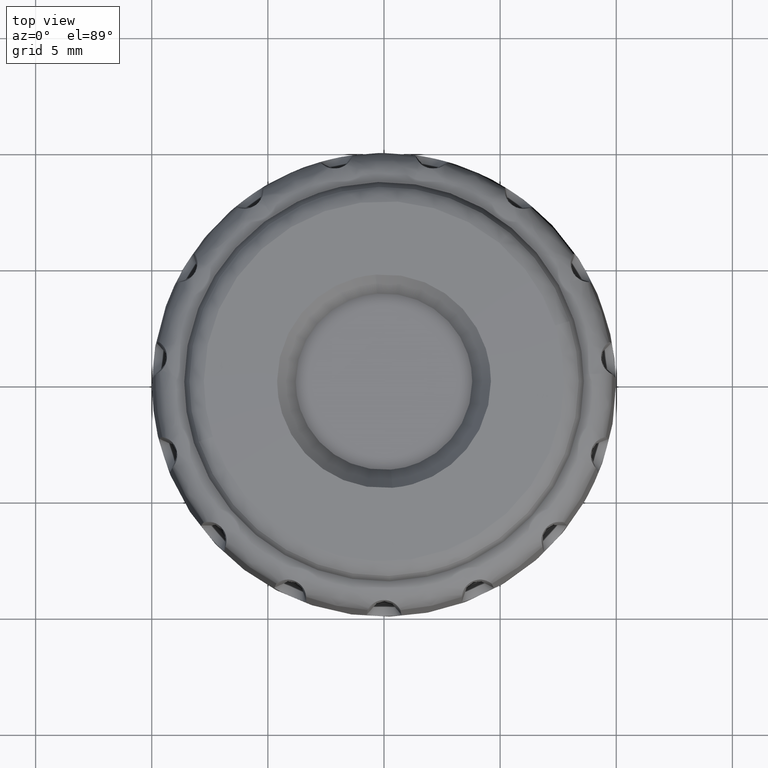
[diagram: clean part render]
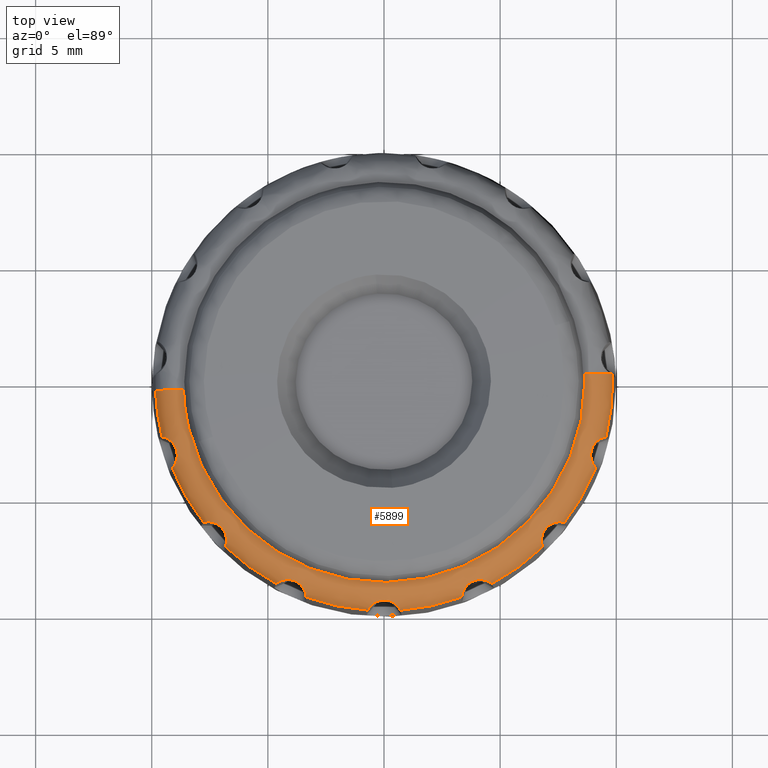
[diagram: same view with one face highlighted and labeled with its STEP entity id]
A machine part, top view. The second image highlights one B-rep face of the part: STEP entity #5899.
In plain terms, the highlighted face is a freeform B-spline surface patch.
Its self-contained STEP definition (entity closure, byte-faithful):
#3811=CARTESIAN_POINT('',(4.637635976504630,-8.684960734353240,11.624295663130360));
#3812=VERTEX_POINT('',#3811);
#3813=CARTESIAN_POINT('',(3.350999456178780,-9.257808220767871,11.624295663130360));
#3814=VERTEX_POINT('',#3813);
#3815=CARTESIAN_POINT('',(4.637635976504630,-8.684960734353240,11.624295663130360));
#3816=CARTESIAN_POINT('',(4.636608645985207,-8.684167511551108,11.682749642530091));
#3817=CARTESIAN_POINT('',(4.631943738530559,-8.680521373731459,11.740204651719431));
#3818=CARTESIAN_POINT('',(4.615203353572202,-8.668174489181718,11.853172620679290));
#3819=CARTESIAN_POINT('',(4.603133110333402,-8.659465721878689,11.908685527784300));
#3820=CARTESIAN_POINT('',(4.578344029615364,-8.643252776485923,11.990376478088040));
#3821=CARTESIAN_POINT('',(4.568896856117394,-8.637291142342791,12.017481844091909));
#3822=CARTESIAN_POINT('',(4.547712017052596,-8.624664469937118,12.070368389816590));
#3823=CARTESIAN_POINT('',(4.536012809522674,-8.618020120462811,12.096092910828650));
#3824=CARTESIAN_POINT('',(4.497309706914053,-8.597524428083945,12.171068356548110));
#3825=CARTESIAN_POINT('',(4.466691996859994,-8.583045603804386,12.218207881241391));
#3826=CARTESIAN_POINT('',(4.393660993014212,-8.555596775305917,12.305781290728000));
#3827=CARTESIAN_POINT('',(4.352513500512317,-8.543134277503382,12.344681769097450));
#3828=CARTESIAN_POINT('',(4.283224876110743,-8.529211357607897,12.395845708990811));
#3829=CARTESIAN_POINT('',(4.258651526324937,-8.525358352364046,12.411803205833010));
#3830=CARTESIAN_POINT('',(4.208226120016832,-8.519988092043008,12.440502143775721));
#3831=CARTESIAN_POINT('',(4.182324087898325,-8.518440156806712,12.453319384359419));
#3832=CARTESIAN_POINT('',(4.129239264947255,-8.517971463506022,12.476120747023341));
#3833=CARTESIAN_POINT('',(4.102056937989644,-8.519048630255291,12.486105865226810));
#3834=CARTESIAN_POINT('',(4.046453923172666,-8.524246670058700,12.503350211179891));
#3835=CARTESIAN_POINT('',(4.018151977742120,-8.528387883604857,12.510544464144759));
#3836=CARTESIAN_POINT('',(3.962332865307659,-8.539668945335635,12.521898031999360));
#3837=CARTESIAN_POINT('',(3.934579587820862,-8.546824589757769,12.526135580710280));
#3838=CARTESIAN_POINT('',(3.879441002225657,-8.564300653768697,12.531865202224321));
#3839=CARTESIAN_POINT('',(3.851831298322425,-8.574729697913464,12.533350443017429));
#3840=CARTESIAN_POINT('',(3.771725631705960,-8.610159010772255,12.533539481046260));
#3841=CARTESIAN_POINT('',(3.721706240920565,-8.639211890461361,12.528226050742269));
#3842=CARTESIAN_POINT('',(3.628683143850402,-8.707524915824548,12.505768157004271));
#3843=CARTESIAN_POINT('',(3.587831846751762,-8.745197260629844,12.489111583425769));
#3844=CARTESIAN_POINT('',(3.534058414977495,-8.805420232291429,12.454915753428651));
#3845=CARTESIAN_POINT('',(3.517459891965453,-8.826081186812480,12.441951644651990));
#3846=CARTESIAN_POINT('',(3.487550244879299,-8.867064979116968,12.413510569113861));
#3847=CARTESIAN_POINT('',(3.474094989029099,-8.887544204531954,12.397949103856330));
#3848=CARTESIAN_POINT('',(3.449827905439963,-8.928160046985195,12.364041340103180));
#3849=CARTESIAN_POINT('',(3.438962899778926,-8.948420044865788,12.345562336215959));
#3850=CARTESIAN_POINT('',(3.419947380297705,-8.987472172998109,12.306498559585600));
#3851=CARTESIAN_POINT('',(3.411757455661317,-9.006301317094515,12.285907748937170));
#3852=CARTESIAN_POINT('',(3.390370963646895,-9.060461988126631,12.221028789506439));
#3853=CARTESIAN_POINT('',(3.380297723867414,-9.093690702608425,12.173132669876651));
#3854=CARTESIAN_POINT('',(3.365897630435911,-9.150678346332308,12.073093106438440));
#3855=CARTESIAN_POINT('',(3.361421624853390,-9.174776860285284,12.020708147777690));
#3856=CARTESIAN_POINT('',(3.356787578316711,-9.204398222882352,11.938823318942539));
#3857=CARTESIAN_POINT('',(3.355597748397640,-9.213208461083227,11.910853656891231));
#3858=CARTESIAN_POINT('',(3.353733682006302,-9.228410706895138,11.854547716689600));
#3859=CARTESIAN_POINT('',(3.353055469710963,-9.234819928552154,11.826202720673830));
#3860=CARTESIAN_POINT('',(3.351508862856201,-9.250586763201818,11.740614259448799));
#3861=CARTESIAN_POINT('',(3.351097516915560,-9.256512385363941,11.682822376164950));
#3862=CARTESIAN_POINT('',(3.350999456178780,-9.257808220767871,11.624295663130360));
#3863=B_SPLINE_CURVE_WITH_KNOTS('',3,(#3815,#3816,#3817,#3818,#3819,#3820,#3821,#3822,#3823,#3824,#3825,#3826,#3827,#3828,#3829,#3830,#3831,#3832,#3833,#3834,#3835,#3836,#3837,#3838,#3839,#3840,#3841,#3842,#3843,#3844,#3845,#3846,#3847,#3848,#3849,#3850,#3851,#3852,#3853,#3854,#3855,#3856,#3857,#3858,#3859,#3860,#3861,#3862),.UNSPECIFIED.,.F.,.U.,(4,2,2,2,2,2,2,2,2,2,2,2,2,2,2,2,2,2,2,2,2,2,2,4),(0.0,0.062499999999999,0.124999999999998,0.156249999999998,0.187499999999998,0.249999999999999,0.312500000000000,0.343750000000000,0.375000000000001,0.406250000000001,0.437500000000001,0.468750000000001,0.500000000000001,0.562500000000000,0.625000000000000,0.656249999999999,0.687499999999999,0.718749999999998,0.749999999999998,0.812499999999999,0.874999999999999,0.906249999999999,0.937499999999999,1.0),.UNSPECIFIED.);
#3864=EDGE_CURVE('',#3812,#3814,#3863,.T.);
#3902=CARTESIAN_POINT('',(7.769183054871680,-6.047809939781700,11.624295663130360));
#3903=VERTEX_POINT('',#3902);
#3904=CARTESIAN_POINT('',(6.826780169709621,-7.094454378053831,11.624295663130360));
#3905=VERTEX_POINT('',#3904);
#3906=CARTESIAN_POINT('',(7.769183054871680,-6.047809939781700,11.624295663130360));
#3907=CARTESIAN_POINT('',(7.767921908962411,-6.047503147660713,11.682749642530080));
#3908=CARTESIAN_POINT('',(7.762177286089938,-6.046069623815995,11.740204651719431));
#3909=CARTESIAN_POINT('',(7.741862253077835,-6.041599111501300,11.853172620679279));
#3910=CARTESIAN_POINT('',(7.727293362416227,-6.038552666906014,11.908685527784300));
#3911=CARTESIAN_POINT('',(7.698053011343698,-6.033824031763629,11.990376478088040));
#3912=CARTESIAN_POINT('',(7.686997773848447,-6.032220319607167,12.017481844091909));
#3913=CARTESIAN_POINT('',(7.662508730002406,-6.029301930711137,12.070368389816590));
#3914=CARTESIAN_POINT('',(7.649118471704830,-6.027990511827262,12.096092910828640));
#3915=CARTESIAN_POINT('',(7.605425079004355,-6.025008735184957,12.171068356548099));
#3916=CARTESIAN_POINT('',(7.571565340677901,-6.024235015638422,12.218207881241391));
#3917=CARTESIAN_POINT('',(7.493683754487680,-6.028863648390725,12.305781290728000));
#3918=CARTESIAN_POINT('',(7.451024695098646,-6.034214783103543,12.344681769097450));
#3919=CARTESIAN_POINT('',(7.382063425310182,-6.049677785368337,12.395845708990811));
#3920=CARTESIAN_POINT('',(7.358047394815659,-6.056152771730551,12.411803205833010));
#3921=CARTESIAN_POINT('',(7.309797212277686,-6.071756655295399,12.440502143775721));
#3922=CARTESIAN_POINT('',(7.285504926510401,-6.080877851684281,12.453319384359419));
#3923=CARTESIAN_POINT('',(7.236818892893933,-6.102041221733797,12.476120747023330));
#3924=CARTESIAN_POINT('',(7.212424724761281,-6.114081310942442,12.486105865226801));
#3925=CARTESIAN_POINT('',(7.163743076404214,-6.141445740185047,12.503350211179900));
#3926=CARTESIAN_POINT('',(7.139572346009713,-6.156740365286200,12.510544464144759));
#3927=CARTESIAN_POINT('',(7.093167470574280,-6.189749806398800,12.521898031999370));
#3928=CARTESIAN_POINT('',(7.070724052782821,-6.207575087776474,12.526135580710280));
#3929=CARTESIAN_POINT('',(7.027460603981470,-6.245967149880071,12.531865202224321));
#3930=CARTESIAN_POINT('',(7.006479758799745,-6.266724434067996,12.533350443017429));
#3931=CARTESIAN_POINT('',(6.947709990709509,-6.331672631828472,12.533539481046249));
#3932=CARTESIAN_POINT('',(6.913831874219892,-6.378558477196641,12.528226050742269));
#3933=CARTESIAN_POINT('',(6.856636457050174,-6.478801433445836,12.505768157004280));
#3934=CARTESIAN_POINT('',(6.834639663209803,-6.529832552368653,12.489111583425769));
#3935=CARTESIAN_POINT('',(6.810010078200251,-6.606720599702365,12.454915753428660));
#3936=CARTESIAN_POINT('',(6.803250140183657,-6.632346548385562,12.441951644651990));
#3937=CARTESIAN_POINT('',(6.792595928050850,-6.681952455133699,12.413510569113861));
#3938=CARTESIAN_POINT('',(6.788633591585565,-6.706133904083834,12.397949103856330));
#3939=CARTESIAN_POINT('',(6.782984459017602,-6.753108634581603,12.364041340103190));
#3940=CARTESIAN_POINT('',(6.781299265975378,-6.776036259546837,12.345562336215959));
#3941=CARTESIAN_POINT('',(6.779811656030097,-6.819446462373532,12.306498559585600));
#3942=CARTESIAN_POINT('',(6.779988290441854,-6.839978883887750,12.285907748937170));
#3943=CARTESIAN_POINT('',(6.782479887329507,-6.898155788861133,12.221028789506450));
#3944=CARTESIAN_POINT('',(6.786792860667269,-6.932608885772085,12.173132669876660));
#3945=CARTESIAN_POINT('',(6.796816683628340,-6.990526734500094,12.073093106438440));
#3946=CARTESIAN_POINT('',(6.802529397728391,-7.014362377942796,12.020708147777700));
#3947=CARTESIAN_POINT('',(6.810344079150368,-7.043307675724718,11.938823318942550));
#3948=CARTESIAN_POINT('',(6.812840562142957,-7.051840176240994,11.910853656891240));
#3949=CARTESIAN_POINT('',(6.817320963187154,-7.066486302954914,11.854547716689600));
#3950=CARTESIAN_POINT('',(6.819308250726932,-7.072617272079004,11.826202720673839));
#3951=CARTESIAN_POINT('',(6.824308304457344,-7.087650053934871,11.740614259448810));
#3952=CARTESIAN_POINT('',(6.826342688908112,-7.093230688611829,11.682822376164950));
#3953=CARTESIAN_POINT('',(6.826780169709621,-7.094454378053831,11.624295663130360));
#3954=B_SPLINE_CURVE_WITH_KNOTS('',3,(#3906,#3907,#3908,#3909,#3910,#3911,#3912,#3913,#3914,#3915,#3916,#3917,#3918,#3919,#3920,#3921,#3922,#3923,#3924,#3925,#3926,#3927,#3928,#3929,#3930,#3931,#3932,#3933,#3934,#3935,#3936,#3937,#3938,#3939,#3940,#3941,#3942,#3943,#3944,#3945,#3946,#3947,#3948,#3949,#3950,#3951,#3952,#3953),.UNSPECIFIED.,.F.,.U.,(4,2,2,2,2,2,2,2,2,2,2,2,2,2,2,2,2,2,2,2,2,2,2,4),(0.0,0.062500000000000,0.125000000000001,0.156250000000002,0.187500000000003,0.250000000000004,0.312500000000004,0.343750000000005,0.375000000000005,0.406250000000005,0.437500000000006,0.468750000000006,0.500000000000007,0.562500000000006,0.625000000000005,0.656250000000005,0.687500000000004,0.718750000000003,0.750000000000002,0.812500000000003,0.875000000000003,0.906250000000002,0.937500000000002,1.0),.UNSPECIFIED.);
#3955=EDGE_CURVE('',#3903,#3905,#3954,.T.);
#3993=CARTESIAN_POINT('',(9.557367802239160,-2.364937863993445,11.624295663130360));
#3994=VERTEX_POINT('',#3993);
#3995=CARTESIAN_POINT('',(9.122148572546839,-3.704404922279605,11.624295663130360));
#3996=VERTEX_POINT('',#3995);
#3997=CARTESIAN_POINT('',(9.557367802239160,-2.364937863993445,11.624295663130360));
#3998=CARTESIAN_POINT('',(9.556090904524915,-2.365170549698443,11.682749642530091));
#3999=CARTESIAN_POINT('',(9.550259863717525,-2.366197509124563,11.740204651719431));
#4000=CARTESIAN_POINT('',(9.529882836415748,-2.370376361237454,11.853172620679279));
#4001=CARTESIAN_POINT('',(9.515334391880945,-2.373518997296511,11.908685527784300));
#4002=CARTESIAN_POINT('',(9.486698692794620,-2.381092296378937,11.990376478088050));
#4003=CARTESIAN_POINT('',(9.475946942298691,-2.384123802610259,12.017481844091920));
#4004=CARTESIAN_POINT('',(9.452388071828370,-2.391418313176731,12.070368389816601));
#4005=CARTESIAN_POINT('',(9.439622060069462,-2.395666581122173,12.096092910828650));
#4006=CARTESIAN_POINT('',(9.398493361817051,-2.410714296486474,12.171068356548110));
#4007=CARTESIAN_POINT('',(9.367246251580909,-2.423779464811574,12.218207881241391));
#4008=CARTESIAN_POINT('',(9.297980516830540,-2.459685226161966,12.305781290728010));
#4009=CARTESIAN_POINT('',(9.261186029468123,-2.481924733584764,12.344681769097450));
#4010=CARTESIAN_POINT('',(9.204476144332656,-2.524099964441287,12.395845708990811));
#4011=CARTESIAN_POINT('',(9.185170022980701,-2.539783358444133,12.411803205833021));
#4012=CARTESIAN_POINT('',(9.147437959112827,-2.573663332669676,12.440502143775729));
#4013=CARTESIAN_POINT('',(9.128955776594417,-2.591876522964627,12.453319384359419));
#4014=CARTESIAN_POINT('',(9.093086789823568,-2.631012617419610,12.476120747023330));
#4015=CARTESIAN_POINT('',(9.075698753800074,-2.651933788282681,12.486105865226810));
#4016=CARTESIAN_POINT('',(9.042355971162740,-2.696733048550394,12.503350211179900));
#4017=CARTESIAN_POINT('',(9.026495794673684,-2.720536505579253,12.510544464144759));
#4018=CARTESIAN_POINT('',(8.997528980775121,-2.769566693823948,12.521898031999360));
#4019=CARTESIAN_POINT('',(8.984276093507200,-2.794979459069368,12.526135580710280));
#4020=CARTESIAN_POINT('',(8.960368424833545,-2.847649182946986,12.531865202224321));
#4021=CARTESIAN_POINT('',(8.949644217110244,-2.875145584167968,12.533350443017429));
#4022=CARTESIAN_POINT('',(8.922372174355619,-2.958382533401493,12.533539481046260));
#4023=CARTESIAN_POINT('',(8.910493166275865,-3.014994355840034,12.528226050742269));
#4024=CARTESIAN_POINT('',(8.899015036239289,-3.129834325161083,12.505768157004271));
#4025=CARTESIAN_POINT('',(8.899676191146785,-3.185400474136504,12.489111583425769));
#4026=CARTESIAN_POINT('',(8.908449131902854,-3.265658955252361,12.454915753428660));
#4027=CARTESIAN_POINT('',(8.912696633576887,-3.291818938765947,12.441951644651990));
#4028=CARTESIAN_POINT('',(8.923140066465670,-3.341469648025465,12.413510569113861));
#4029=CARTESIAN_POINT('',(8.929355773356841,-3.365172128305704,12.397949103856320));
#4030=CARTESIAN_POINT('',(8.943301378151810,-3.410383389192908,12.364041340103180));
#4031=CARTESIAN_POINT('',(8.951087382914896,-3.432014246595362,12.345562336215950));
#4032=CARTESIAN_POINT('',(8.967384903779610,-3.472276505678381,12.306498559585600));
#4033=CARTESIAN_POINT('',(8.975897555545046,-3.490961962399410,12.285907748937170));
#4034=CARTESIAN_POINT('',(9.001836421597449,-3.543095785923565,12.221028789506439));
#4035=CARTESIAN_POINT('',(9.019789855780221,-3.572816011811208,12.173132669876651));
#4036=CARTESIAN_POINT('',(9.052504385080326,-3.621649543331139,12.073093106438430));
#4037=CARTESIAN_POINT('',(9.067418038696674,-3.641100916972301,12.020708147777690));
#4038=CARTESIAN_POINT('',(9.086330218665292,-3.664365244992806,11.938823318942550));
#4039=CARTESIAN_POINT('',(9.092081349980285,-3.671144660969881,11.910853656891231));
#4040=CARTESIAN_POINT('',(9.102131516416311,-3.682702220221089,11.854547716689590));
#4041=CARTESIAN_POINT('',(9.106440683721639,-3.687494836552594,11.826202720673830));
#4042=CARTESIAN_POINT('',(9.117122843323173,-3.699194261063250,11.740614259448810));
#4043=CARTESIAN_POINT('',(9.121251194611999,-3.703464965820912,11.682822376164950));
#4044=CARTESIAN_POINT('',(9.122148572546839,-3.704404922279605,11.624295663130360));
#4045=B_SPLINE_CURVE_WITH_KNOTS('',3,(#3997,#3998,#3999,#4000,#4001,#4002,#4003,#4004,#4005,#4006,#4007,#4008,#4009,#4010,#4011,#4012,#4013,#4014,#4015,#4016,#4017,#4018,#4019,#4020,#4021,#4022,#4023,#4024,#4025,#4026,#4027,#4028,#4029,#4030,#4031,#4032,#4033,#4034,#4035,#4036,#4037,#4038,#4039,#4040,#4041,#4042,#4043,#4044),.UNSPECIFIED.,.F.,.U.,(4,2,2,2,2,2,2,2,2,2,2,2,2,2,2,2,2,2,2,2,2,2,2,4),(0.0,0.062499999999999,0.124999999999998,0.156249999999998,0.187499999999999,0.249999999999998,0.312499999999997,0.343749999999997,0.374999999999996,0.406249999999996,0.437499999999995,0.468749999999994,0.499999999999994,0.562499999999993,0.624999999999992,0.656249999999992,0.687499999999992,0.718749999999992,0.749999999999992,0.812499999999994,0.874999999999996,0.906249999999997,0.937499999999998,1.0),.UNSPECIFIED.);
#4046=EDGE_CURVE('',#3994,#3996,#4045,.T.);
#4086=CARTESIAN_POINT('',(9.753774350745410,0.367882929390230,12.043987260939490));
#4087=VERTEX_POINT('',#4086);
#4133=CARTESIAN_POINT('',(9.840214615072579,0.326169798018977,11.624295663130360));
#4134=VERTEX_POINT('',#4133);
#4135=CARTESIAN_POINT('',(9.753774350745410,0.367882929390230,12.043987260939490));
#4136=CARTESIAN_POINT('',(9.764125403357488,0.362097205905339,12.018561900542251));
#4137=CARTESIAN_POINT('',(9.773645901445381,0.357084966167851,11.992599385654950));
#4138=CARTESIAN_POINT('',(9.791206734610061,0.348179203254263,11.938823087230270));
#4139=CARTESIAN_POINT('',(9.799218144830409,0.344325096544657,11.910853446451361));
#4140=CARTESIAN_POINT('',(9.813100418096665,0.337854515967455,11.854547548654640));
#4141=CARTESIAN_POINT('',(9.818986424098968,0.335228941435563,11.826202573780440));
#4142=CARTESIAN_POINT('',(9.833503806012603,0.328885817347881,11.740614175805840));
#4143=CARTESIAN_POINT('',(9.839012400037719,0.326663490333252,11.682822334458301));
#4144=CARTESIAN_POINT('',(9.840214615072579,0.326169798018977,11.624295663130360));
#4145=B_SPLINE_CURVE_WITH_KNOTS('',3,(#4135,#4136,#4137,#4138,#4139,#4140,#4141,#4142,#4143,#4144),.UNSPECIFIED.,.F.,.U.,(4,2,2,2,4),(0.844681429572497,0.874999999999997,0.906249999999998,0.937499999999999,1.0),.UNSPECIFIED.);
#4146=EDGE_CURVE('',#4087,#4134,#4145,.T.);
#4821=CARTESIAN_POINT('',(-9.122148572546831,-3.704404922279615,11.624295663130360));
#4822=VERTEX_POINT('',#4821);
#4823=CARTESIAN_POINT('',(-9.557367802239160,-2.364937863993455,11.624295663130360));
#4824=VERTEX_POINT('',#4823);
#4825=CARTESIAN_POINT('',(-9.122148572546831,-3.704404922279615,11.624295663130360));
#4826=CARTESIAN_POINT('',(-9.121252309821745,-3.703466133944803,11.682749642530091));
#4827=CARTESIAN_POINT('',(-9.117138530319052,-3.699207906524439,11.740204651719431));
#4828=CARTESIAN_POINT('',(-9.103109436580537,-3.683849828014586,11.853172620679279));
#4829=CARTESIAN_POINT('',(-9.093186692838998,-3.672756020894320,11.908685527784300));
#4830=CARTESIAN_POINT('',(-9.074471399144203,-3.649797451621129,11.990376478088040));
#4831=CARTESIAN_POINT('',(-9.067554924928722,-3.641025191183599,12.017481844091909));
#4832=CARTESIAN_POINT('',(-9.052783004083615,-3.621276251546552,12.070368389816590));
#4833=CARTESIAN_POINT('',(-9.044952152866387,-3.610335657139554,12.096092910828650));
#4834=CARTESIAN_POINT('',(-9.020523162195506,-3.573986957404564,12.171068356548110));
#4835=CARTESIAN_POINT('',(-9.002923232249570,-3.545050423621627,12.218207881241391));
#4836=CARTESIAN_POINT('',(-8.967990952702742,-3.475288675117717,12.305781290727991));
#4837=CARTESIAN_POINT('',(-8.951295641608605,-3.435669278628856,12.344681769097450));
#4838=CARTESIAN_POINT('',(-8.930206359494457,-3.368215565982416,12.395845708990800));
#4839=CARTESIAN_POINT('',(-8.923805846926033,-3.344179580294991,12.411803205833010));
#4840=CARTESIAN_POINT('',(-8.913194115221900,-3.294591754697444,12.440502143775721));
#4841=CARTESIAN_POINT('',(-8.908947160123935,-3.268993419912545,12.453319384359411));
#4842=CARTESIAN_POINT('',(-8.902932159408275,-3.216248392966421,12.476120747023330));
#4843=CARTESIAN_POINT('',(-8.901162098460466,-3.189102379055033,12.486105865226801));
#4844=CARTESIAN_POINT('',(-8.900519565166087,-3.133260620258410,12.503350211179900));
#4845=CARTESIAN_POINT('',(-8.901679733847793,-3.104680841158172,12.510544464144759));
#4846=CARTESIAN_POINT('',(-8.907064310698313,-3.047988319615332,12.521898031999370));
#4847=CARTESIAN_POINT('',(-8.911279748305258,-3.019639108971345,12.526135580710280));
#4848=CARTESIAN_POINT('',(-8.922896524989973,-2.962975832202249,12.531865202224321));
#4849=CARTESIAN_POINT('',(-8.930382437819421,-2.934427245188045,12.533350443017429));
#4850=CARTESIAN_POINT('',(-8.957244342964890,-2.851057034167141,12.533539481046249));
#4851=CARTESIAN_POINT('',(-8.980909617886827,-2.798274801970681,12.528226050742260));
#4852=CARTESIAN_POINT('',(-9.039124855964220,-2.698620639597058,12.505768157004271));
#4853=CARTESIAN_POINT('',(-9.072320704414739,-2.654055297868079,12.489111583425760));
#4854=CARTESIAN_POINT('',(-9.126592914148342,-2.594281427898283,12.454915753428660));
#4855=CARTESIAN_POINT('',(-9.145405667695769,-2.575614175506308,12.441951644651990));
#4856=CARTESIAN_POINT('',(-9.183038537051013,-2.541584403767920,12.413510569113861));
#4857=CARTESIAN_POINT('',(-9.201999117909505,-2.526062195255574,12.397949103856330));
#4858=CARTESIAN_POINT('',(-9.239855861572519,-2.497682537693488,12.364041340103190));
#4859=CARTESIAN_POINT('',(-9.258869170719743,-2.484759305226022,12.345562336215959));
#4860=CARTESIAN_POINT('',(-9.295719704178458,-2.461765895809141,12.306498559585600));
#4861=CARTESIAN_POINT('',(-9.313589620016856,-2.451652654939796,12.285907748937170));
#4862=CARTESIAN_POINT('',(-9.365218096081179,-2.424721988653801,12.221028789506439));
#4863=CARTESIAN_POINT('',(-9.397211839913995,-2.411230584674672,12.173132669876651));
#4864=CARTESIAN_POINT('',(-9.452382079725526,-2.390952545637991,12.073093106438440));
#4865=CARTESIAN_POINT('',(-9.475880709512483,-2.383982079451843,12.020708147777700));
#4866=CARTESIAN_POINT('',(-9.504855413422721,-2.376277143194797,11.938823318942550));
#4867=CARTESIAN_POINT('',(-9.513493017123912,-2.374172910628356,11.910853656891231));
#4868=CARTESIAN_POINT('',(-9.528417135447313,-2.370729988394813,11.854547716689600));
#4869=CARTESIAN_POINT('',(-9.534720354228481,-2.369385545326841,11.826202720673839));
#4870=CARTESIAN_POINT('',(-9.550239152070425,-2.366199327949729,11.740614259448810));
#4871=CARTESIAN_POINT('',(-9.556089315695287,-2.365170839226681,11.682822376164950));
#4872=CARTESIAN_POINT('',(-9.557367802239160,-2.364937863993455,11.624295663130360));
#4873=B_SPLINE_CURVE_WITH_KNOTS('',3,(#4825,#4826,#4827,#4828,#4829,#4830,#4831,#4832,#4833,#4834,#4835,#4836,#4837,#4838,#4839,#4840,#4841,#4842,#4843,#4844,#4845,#4846,#4847,#4848,#4849,#4850,#4851,#4852,#4853,#4854,#4855,#4856,#4857,#4858,#4859,#4860,#4861,#4862,#4863,#4864,#4865,#4866,#4867,#4868,#4869,#4870,#4871,#4872),.UNSPECIFIED.,.F.,.U.,(4,2,2,2,2,2,2,2,2,2,2,2,2,2,2,2,2,2,2,2,2,2,2,4),(0.0,0.062499999999998,0.124999999999997,0.156249999999996,0.187499999999995,0.249999999999995,0.312499999999995,0.343749999999996,0.374999999999996,0.406249999999996,0.437499999999996,0.468749999999996,0.499999999999996,0.562499999999995,0.624999999999995,0.656249999999995,0.687499999999995,0.718749999999995,0.749999999999995,0.812499999999997,0.874999999999999,0.906249999999999,0.937500000000000,1.0),.UNSPECIFIED.);
#4874=EDGE_CURVE('',#4822,#4824,#4873,.T.);
#4912=CARTESIAN_POINT('',(-6.826780169709610,-7.094454378053831,11.624295663130360));
#4913=VERTEX_POINT('',#4912);
#4914=CARTESIAN_POINT('',(-7.769183054871680,-6.047809939781710,11.624295663130360));
#4915=VERTEX_POINT('',#4914);
#4916=CARTESIAN_POINT('',(-6.826780169709610,-7.094454378053831,11.624295663130360));
#4917=CARTESIAN_POINT('',(-6.826343232584110,-7.093232209342758,11.682749642530080));
#4918=CARTESIAN_POINT('',(-6.824317085132095,-7.087668900159997,11.740204651719440));
#4919=CARTESIAN_POINT('',(-6.817747563569630,-7.067932450806607,11.853172620679290));
#4920=CARTESIAN_POINT('',(-6.813194943964220,-7.053761810224384,11.908685527784300));
#4921=CARTESIAN_POINT('',(-6.805435763816893,-7.025175917819288,11.990376478088050));
#4922=CARTESIAN_POINT('',(-6.802685249976984,-7.014348875639002,12.017481844091920));
#4923=CARTESIAN_POINT('',(-6.797223046200561,-6.990299040044000,12.070368389816601));
#4924=CARTESIAN_POINT('',(-6.794519148283944,-6.977119215583053,12.096092910828650));
#4925=CARTESIAN_POINT('',(-6.786986502932147,-6.933976860389735,12.171068356548110));
#4926=CARTESIAN_POINT('',(-6.782677715488331,-6.900383484967834,12.218207881241391));
#4927=CARTESIAN_POINT('',(-6.779140149584806,-6.822444718387018,12.305781290728010));
#4928=CARTESIAN_POINT('',(-6.780002884299392,-6.779460003900539,12.344681769097450));
#4929=CARTESIAN_POINT('',(-6.788172763063881,-6.709260187299267,12.395845708990811));
#4930=CARTESIAN_POINT('',(-6.792101920011932,-6.684698898758513,12.411803205833021));
#4931=CARTESIAN_POINT('',(-6.802576806436875,-6.635081985798942,12.440502143775729));
#4932=CARTESIAN_POINT('',(-6.809108800657058,-6.609969351073141,12.453319384359419));
#4933=CARTESIAN_POINT('',(-6.825067159274558,-6.559337850094087,12.476120747023341));
#4934=CARTESIAN_POINT('',(-6.834491406707143,-6.533818783744284,12.486105865226810));
#4935=CARTESIAN_POINT('',(-6.856617312851067,-6.482543456813635,12.503350211179900));
#4936=CARTESIAN_POINT('',(-6.869301623091420,-6.456906412551182,12.510544464144759));
#4937=CARTESIAN_POINT('',(-6.897279604714380,-6.407305321725983,12.521898031999370));
#4938=CARTESIAN_POINT('',(-6.912661261363361,-6.383121602055757,12.526135580710280));
#4939=CARTESIAN_POINT('',(-6.946320745914865,-6.336082091700304,12.531865202224321));
#4940=CARTESIAN_POINT('',(-6.964771224023235,-6.313046454765975,12.533350443017429));
#4941=CARTESIAN_POINT('',(-7.023220515215670,-6.247809698310612,12.533539481046249));
#4942=CARTESIAN_POINT('',(-7.066308287562105,-6.209216264322512,12.528226050742269));
#4943=CARTESIAN_POINT('',(-7.160023553345670,-6.141855927462373,12.505768157004271));
#4944=CARTESIAN_POINT('',(-7.208475827402602,-6.114645429920391,12.489111583425769));
#4945=CARTESIAN_POINT('',(-7.282368181296122,-6.082113778923113,12.454915753428651));
#4946=CARTESIAN_POINT('',(-7.307147142418490,-6.072712231518651,12.441951644651990));
#4947=CARTESIAN_POINT('',(-7.355367634397538,-6.056931155073296,12.413510569113861));
#4948=CARTESIAN_POINT('',(-7.379002437898509,-6.050462875003408,12.397949103856330));
#4949=CARTESIAN_POINT('',(-7.425129340761441,-6.039934492583389,12.364041340103180));
#4950=CARTESIAN_POINT('',(-7.447755215159146,-6.035861941800982,12.345562336215959));
#4951=CARTESIAN_POINT('',(-7.490772114771151,-6.029844879347022,12.306498559585600));
#4952=CARTESIAN_POINT('',(-7.511210520855591,-6.027874323668942,12.285907748937170));
#4953=CARTESIAN_POINT('',(-7.569329169450127,-6.024271128853610,12.221028789506439));
#4954=CARTESIAN_POINT('',(-7.604044357166424,-6.024959145997244,12.173132669876651));
#4955=CARTESIAN_POINT('',(-7.662692700669244,-6.028873993684013,12.073093106438440));
#4956=CARTESIAN_POINT('',(-7.686994911189167,-6.032063909758434,12.020708147777690));
#4957=CARTESIAN_POINT('',(-7.716598500241205,-6.036810174041945,11.938823318942539));
#4958=CARTESIAN_POINT('',(-7.725345212357674,-6.038401091872693,11.910853656891231));
#4959=CARTESIAN_POINT('',(-7.740379435492975,-6.041326011692949,11.854547716689590));
#4960=CARTESIAN_POINT('',(-7.746684546639314,-6.042661551882770,11.826202720673830));
#4961=CARTESIAN_POINT('',(-7.762157625275966,-6.046062861209646,11.740614259448799));
#4962=CARTESIAN_POINT('',(-7.767920339732584,-6.047502765922695,11.682822376164950));
#4963=CARTESIAN_POINT('',(-7.769183054871680,-6.047809939781710,11.624295663130360));
#4964=B_SPLINE_CURVE_WITH_KNOTS('',3,(#4916,#4917,#4918,#4919,#4920,#4921,#4922,#4923,#4924,#4925,#4926,#4927,#4928,#4929,#4930,#4931,#4932,#4933,#4934,#4935,#4936,#4937,#4938,#4939,#4940,#4941,#4942,#4943,#4944,#4945,#4946,#4947,#4948,#4949,#4950,#4951,#4952,#4953,#4954,#4955,#4956,#4957,#4958,#4959,#4960,#4961,#4962,#4963),.UNSPECIFIED.,.F.,.U.,(4,2,2,2,2,2,2,2,2,2,2,2,2,2,2,2,2,2,2,2,2,2,2,4),(0.0,0.062500000000000,0.125000000000001,0.156250000000000,0.187499999999999,0.249999999999999,0.312500000000000,0.343750000000000,0.375000000000000,0.406250000000001,0.437500000000001,0.468750000000001,0.500000000000001,0.562500000000000,0.624999999999999,0.656249999999999,0.687499999999998,0.718749999999998,0.749999999999997,0.812499999999998,0.874999999999999,0.906249999999999,0.937499999999999,1.0),.UNSPECIFIED.);
#4965=EDGE_CURVE('',#4913,#4915,#4964,.T.);
#5003=CARTESIAN_POINT('',(-3.350999456178775,-9.257808220767871,11.624295663130360));
#5004=VERTEX_POINT('',#5003);
#5005=CARTESIAN_POINT('',(-4.637635976504620,-8.684960734353250,11.624295663130360));
#5006=VERTEX_POINT('',#5005);
#5007=CARTESIAN_POINT('',(-3.350999456178775,-9.257808220767871,11.624295663130360));
#5008=CARTESIAN_POINT('',(-3.351097395051315,-9.256513995753737,11.682749642530091));
#5009=CARTESIAN_POINT('',(-3.351509218951400,-9.250607551507354,11.740204651719431));
#5010=CARTESIAN_POINT('',(-3.353535199525358,-9.229905342703637,11.853172620679279));
#5011=CARTESIAN_POINT('',(-3.355139893345106,-9.215108101152360,11.908685527784300));
#5012=CARTESIAN_POINT('',(-3.359678459482662,-9.185837646106887,11.990376478088040));
#5013=CARTESIAN_POINT('',(-3.361569494848879,-9.174827916137399,12.017481844091909));
#5014=CARTESIAN_POINT('',(-3.366361472796647,-9.150635619644717,12.070368389816590));
#5015=CARTESIAN_POINT('',(-3.369252056694565,-9.137495476514069,12.096092910828650));
#5016=CARTESIAN_POINT('',(-3.379918219475111,-9.095019171011337,12.171068356548110));
#5017=CARTESIAN_POINT('',(-3.389645603026556,-9.062577553747152,12.218207881241391));
#5018=CARTESIAN_POINT('',(-3.418114428048824,-8.989938089882720,12.305781290728000));
#5019=CARTESIAN_POINT('',(-3.436386033902287,-8.951020505037214,12.344681769097450));
#5020=CARTESIAN_POINT('',(-3.472402427286014,-8.890212770516779,12.395845708990811));
#5021=CARTESIAN_POINT('',(-3.485981866818956,-8.869373049043691,12.411803205833010));
#5022=CARTESIAN_POINT('',(-3.515732168348745,-8.828306263728310,12.440502143775729));
#5023=CARTESIAN_POINT('',(-3.531913670745099,-8.808021531746823,12.453319384359411));
#5024=CARTESIAN_POINT('',(-3.567086043513659,-8.768258203226864,12.476120747023330));
#5025=CARTESIAN_POINT('',(-3.586075061328943,-8.748778562843961,12.486105865226801));
#5026=CARTESIAN_POINT('',(-3.627143636731339,-8.710935637627323,12.503350211179900));
#5027=CARTESIAN_POINT('',(-3.649158856056438,-8.692674206060872,12.510544464144759));
#5028=CARTESIAN_POINT('',(-3.694892595257238,-8.658741025168752,12.521898031999360));
#5029=CARTESIAN_POINT('',(-3.718780842775688,-8.642904381305463,12.526135580710269));
#5030=CARTESIAN_POINT('',(-3.768663004528212,-8.613622196044650,12.531865202224310));
#5031=CARTESIAN_POINT('',(-3.794887792633230,-8.600082580088330,12.533350443017429));
#5032=CARTESIAN_POINT('',(-3.874818056430314,-8.564259306046969,12.533539481046249));
#5033=CARTESIAN_POINT('',(-3.929878058922422,-8.546527825614113,12.528226050742269));
#5034=CARTESIAN_POINT('',(-4.042889131581714,-8.523108528460016,12.505768157004271));
#5035=CARTESIAN_POINT('',(-4.098219992885533,-8.517957817329652,12.489111583425769));
#5036=CARTESIAN_POINT('',(-4.178955831659821,-8.518293403303089,12.454915753428651));
#5037=CARTESIAN_POINT('',(-4.205416492869271,-8.519783173842749,12.441951644651990));
#5038=CARTESIAN_POINT('',(-4.255886846339530,-8.524979484174406,12.413510569113861));
#5039=CARTESIAN_POINT('',(-4.280109200242218,-8.528683556933544,12.397949103856330));
#5040=CARTESIAN_POINT('',(-4.326530501750308,-8.537826902623365,12.364041340103180));
#5041=CARTESIAN_POINT('',(-4.348856722165515,-8.543309214554251,12.345562336215959));
#5042=CARTESIAN_POINT('',(-4.390601975191628,-8.555308903824800,12.306498559585590));
#5043=CARTESIAN_POINT('',(-4.410074885433020,-8.561821760316665,12.285907748937170));
#5044=CARTESIAN_POINT('',(-4.464634464224424,-8.582169062089561,12.221028789506439));
#5045=CARTESIAN_POINT('',(-4.496068524490480,-8.596917535941380,12.173132669876660));
#5046=CARTESIAN_POINT('',(-4.548054140289472,-8.624348357621285,12.073093106438440));
#5047=CARTESIAN_POINT('',(-4.568957858564820,-8.637147090487522,12.020708147777700));
#5048=CARTESIAN_POINT('',(-4.594071603271402,-8.653523883098524,11.938823318942539));
#5049=CARTESIAN_POINT('',(-4.601415037816820,-8.658534867180487,11.910853656891240));
#5050=CARTESIAN_POINT('',(-4.613959812002307,-8.667321883845556,11.854547716689600));
#5051=CARTESIAN_POINT('',(-4.619176604516477,-8.671106480261345,11.826202720673839));
#5052=CARTESIAN_POINT('',(-4.631928528083060,-8.680507199009675,11.740614259448799));
#5053=CARTESIAN_POINT('',(-4.636607367689260,-8.684166524552806,11.682822376164950));
#5054=CARTESIAN_POINT('',(-4.637635976504620,-8.684960734353250,11.624295663130360));
#5055=B_SPLINE_CURVE_WITH_KNOTS('',3,(#5007,#5008,#5009,#5010,#5011,#5012,#5013,#5014,#5015,#5016,#5017,#5018,#5019,#5020,#5021,#5022,#5023,#5024,#5025,#5026,#5027,#5028,#5029,#5030,#5031,#5032,#5033,#5034,#5035,#5036,#5037,#5038,#5039,#5040,#5041,#5042,#5043,#5044,#5045,#5046,#5047,#5048,#5049,#5050,#5051,#5052,#5053,#5054),.UNSPECIFIED.,.F.,.U.,(4,2,2,2,2,2,2,2,2,2,2,2,2,2,2,2,2,2,2,2,2,2,2,4),(0.0,0.062499999999996,0.124999999999993,0.156249999999991,0.187499999999989,0.249999999999988,0.312499999999987,0.343749999999987,0.374999999999987,0.406249999999987,0.437499999999987,0.468749999999987,0.499999999999987,0.562499999999989,0.624999999999990,0.656249999999991,0.687499999999993,0.718749999999994,0.749999999999995,0.812499999999997,0.874999999999999,0.906249999999999,0.937499999999999,1.0),.UNSPECIFIED.);
#5056=EDGE_CURVE('',#5004,#5006,#5055,.T.);
#5322=CARTESIAN_POINT('',(9.840214615072574,0.326169798018975,11.624295663130360));
#5323=CARTESIAN_POINT('',(9.885465514059995,-1.039004293100484,11.624295663130365));
#5324=CARTESIAN_POINT('',(9.557367802239158,-2.364937863993444,11.624295663130360));
#5332=(BOUNDED_CURVE()B_SPLINE_CURVE(2,(#5322,#5323,#5324),.UNSPECIFIED.,.F.,.U.)CURVE()GEOMETRIC_REPRESENTATION_ITEM()QUASI_UNIFORM_CURVE()RATIONAL_B_SPLINE_CURVE((1.0,0.990513142673961,1.0))REPRESENTATION_ITEM(''));
#5333=EDGE_CURVE('',#4134,#3994,#5332,.T.);
#5338=CARTESIAN_POINT('',(8.492114160803112,-4.981988284148621,11.624296225726731));
#5339=VERTEX_POINT('',#5338);
#5340=CARTESIAN_POINT('',(9.122148572546839,-3.704404922279605,11.624295663130360));
#5341=CARTESIAN_POINT('',(8.853463685122026,-4.366045174416421,11.624295944428550));
#5342=CARTESIAN_POINT('',(8.492114160803112,-4.981988284148621,11.624296225726736));
#5350=(BOUNDED_CURVE()B_SPLINE_CURVE(2,(#5340,#5341,#5342),.UNSPECIFIED.,.F.,.U.)B_SPLINE_CURVE_WITH_KNOTS((3,3),(0.0,0.525184444585081),.UNSPECIFIED.)CURVE()GEOMETRIC_REPRESENTATION_ITEM()RATIONAL_B_SPLINE_CURVE((1.0,0.995017650104366,0.995268605534066))REPRESENTATION_ITEM(''));
#5351=EDGE_CURVE('',#3996,#5339,#5350,.T.);
#5385=CARTESIAN_POINT('',(8.492114160803112,-4.981988284148621,11.624296225726736));
#5386=CARTESIAN_POINT('',(8.165577426048385,-5.538590814535159,11.624295944428548));
#5387=CARTESIAN_POINT('',(7.769183054871680,-6.047809939781700,11.624295663130360));
#5395=(BOUNDED_CURVE()B_SPLINE_CURVE(2,(#5385,#5386,#5387),.UNSPECIFIED.,.F.,.U.)B_SPLINE_CURVE_WITH_KNOTS((3,3),(0.525184444585081,1.0),.UNSPECIFIED.)CURVE()GEOMETRIC_REPRESENTATION_ITEM()RATIONAL_B_SPLINE_CURVE((0.995268605534066,0.995495492569595,1.0))REPRESENTATION_ITEM(''));
#5396=EDGE_CURVE('',#5339,#3903,#5395,.T.);
#5401=CARTESIAN_POINT('',(6.826780169709619,-7.094454378053827,11.624295663130360));
#5402=CARTESIAN_POINT('',(5.842536869496119,-8.041562116860698,11.624295663130361));
#5403=CARTESIAN_POINT('',(4.637635976504628,-8.684960734353242,11.624295663130360));
#5411=(BOUNDED_CURVE()B_SPLINE_CURVE(2,(#5401,#5402,#5403),.UNSPECIFIED.,.F.,.U.)CURVE()GEOMETRIC_REPRESENTATION_ITEM()QUASI_UNIFORM_CURVE()RATIONAL_B_SPLINE_CURVE((1.0,0.990513142673961,1.0))REPRESENTATION_ITEM(''));
#5412=EDGE_CURVE('',#3905,#3812,#5411,.T.);
#5417=CARTESIAN_POINT('',(0.704199506199728,-9.820402917563810,11.624295663130360));
#5418=VERTEX_POINT('',#5417);
#5419=CARTESIAN_POINT('',(3.350999456178778,-9.257808220767869,11.624295663130360));
#5420=CARTESIAN_POINT('',(2.066625037740152,-9.722706377554355,11.624295663130363));
#5421=CARTESIAN_POINT('',(0.704199506199731,-9.820402917563804,11.624295663130360));
#5429=(BOUNDED_CURVE()B_SPLINE_CURVE(2,(#5419,#5420,#5421),.UNSPECIFIED.,.F.,.U.)CURVE()GEOMETRIC_REPRESENTATION_ITEM()QUASI_UNIFORM_CURVE()RATIONAL_B_SPLINE_CURVE((1.0,0.990513142673961,1.0))REPRESENTATION_ITEM(''));
#5430=EDGE_CURVE('',#3814,#5418,#5429,.T.);
#5489=CARTESIAN_POINT('',(-0.704199506199726,-9.820402917563810,11.624295663130360));
#5490=VERTEX_POINT('',#5489);
#5498=CARTESIAN_POINT('',(-0.704199506199727,-9.820402917563804,11.624295663130360));
#5499=CARTESIAN_POINT('',(-2.066625037740151,-9.722706377554355,11.624295663130363));
#5500=CARTESIAN_POINT('',(-3.350999456178774,-9.257808220767871,11.624295663130360));
#5508=(BOUNDED_CURVE()B_SPLINE_CURVE(2,(#5498,#5499,#5500),.UNSPECIFIED.,.F.,.U.)CURVE()GEOMETRIC_REPRESENTATION_ITEM()QUASI_UNIFORM_CURVE()RATIONAL_B_SPLINE_CURVE((1.0,0.990513142673961,1.0))REPRESENTATION_ITEM(''));
#5509=EDGE_CURVE('',#5490,#5004,#5508,.T.);
#5514=CARTESIAN_POINT('',(-4.637635976504617,-8.684960734353247,11.624295663130360));
#5515=CARTESIAN_POINT('',(-5.842536869496113,-8.041562116860703,11.624295663130363));
#5516=CARTESIAN_POINT('',(-6.826780169709614,-7.094454378053833,11.624295663130360));
#5524=(BOUNDED_CURVE()B_SPLINE_CURVE(2,(#5514,#5515,#5516),.UNSPECIFIED.,.F.,.U.)CURVE()GEOMETRIC_REPRESENTATION_ITEM()QUASI_UNIFORM_CURVE()RATIONAL_B_SPLINE_CURVE((1.0,0.990513142673961,1.0))REPRESENTATION_ITEM(''));
#5525=EDGE_CURVE('',#5006,#4913,#5524,.T.);
#5530=CARTESIAN_POINT('',(-7.769183054871675,-6.047809939781710,11.624295663130360));
#5531=CARTESIAN_POINT('',(-8.608220998735041,-4.969958710863476,11.624295663130361));
#5532=CARTESIAN_POINT('',(-9.122148572546829,-3.704404922279615,11.624295663130360));
#5540=(BOUNDED_CURVE()B_SPLINE_CURVE(2,(#5530,#5531,#5532),.UNSPECIFIED.,.F.,.U.)CURVE()GEOMETRIC_REPRESENTATION_ITEM()QUASI_UNIFORM_CURVE()RATIONAL_B_SPLINE_CURVE((1.0,0.990513142673961,1.0))REPRESENTATION_ITEM(''));
#5541=EDGE_CURVE('',#4915,#4822,#5540,.T.);
#5546=CARTESIAN_POINT('',(-9.838623261752456,-0.371083172702999,11.624295663300201));
#5547=VERTEX_POINT('',#5546);
#5548=CARTESIAN_POINT('',(-9.557367802239160,-2.364937863993455,11.624295663130360));
#5549=CARTESIAN_POINT('',(-9.800476929230522,-1.382466663320612,11.624295663215278));
#5550=CARTESIAN_POINT('',(-9.838623261752456,-0.371083172702999,11.624295663300199));
#5558=(BOUNDED_CURVE()B_SPLINE_CURVE(2,(#5548,#5549,#5550),.UNSPECIFIED.,.F.,.U.)B_SPLINE_CURVE_WITH_KNOTS((3,3),(0.0,0.844365168187942),.UNSPECIFIED.)CURVE()GEOMETRIC_REPRESENTATION_ITEM()RATIONAL_B_SPLINE_CURVE((1.0,0.993797077716784,0.998069218467417))REPRESENTATION_ITEM(''));
#5559=EDGE_CURVE('',#4824,#5547,#5558,.T.);
#5616=CARTESIAN_POINT('',(-8.639721729884112,-0.325864225683395,12.800000684199469));
#5617=VERTEX_POINT('',#5616);
#5633=CARTESIAN_POINT('',(8.645864853065600,0.0,12.800000684199460));
#5634=VERTEX_POINT('',#5633);
#5635=CARTESIAN_POINT('',(8.645864853065600,0.0,12.800000684199460));
#5636=CARTESIAN_POINT('',(8.645974962084999,-0.611504941653401,12.800000684199491));
#5637=CARTESIAN_POINT('',(8.554650520169837,-1.467548330580325,12.800000684199411));
#5638=CARTESIAN_POINT('',(8.255113047265041,-2.618322922535123,12.800000684199491));
#5639=CARTESIAN_POINT('',(7.908740556895642,-3.553768559117009,12.800000684199510));
#5640=CARTESIAN_POINT('',(7.361591333831715,-4.592108384950321,12.800000684199359));
#5641=CARTESIAN_POINT('',(6.659334998167523,-5.554283120507083,12.800000684199560));
#5642=CARTESIAN_POINT('',(5.932891051827974,-6.312707635693604,12.800000684199450));
#5643=CARTESIAN_POINT('',(5.168920536435262,-6.953355660404843,12.800000684199460));
#5644=CARTESIAN_POINT('',(4.235239417383013,-7.572713510040792,12.800000684199400));
#5645=CARTESIAN_POINT('',(3.077545165629591,-8.117986904773844,12.800000684199601));
#5646=CARTESIAN_POINT('',(1.714583789092812,-8.513697577018609,12.800000684199491));
#5647=CARTESIAN_POINT('',(0.443294672836638,-8.665550489837834,12.800000684199031));
#5648=CARTESIAN_POINT('',(-0.606345847527461,-8.637547235004940,12.800000684199681));
#5649=CARTESIAN_POINT('',(-1.474136429748521,-8.532402967833360,12.800000684199450));
#5650=CARTESIAN_POINT('',(-2.500095036413118,-8.308893019428853,12.800000684199450));
#5651=CARTESIAN_POINT('',(-3.649089789479387,-7.876345438537939,12.800000684199480));
#5652=CARTESIAN_POINT('',(-4.807489032730820,-7.221301941780566,12.800000684199469));
#5653=CARTESIAN_POINT('',(-5.681486643383241,-6.547045388124161,12.800000684199460));
#5654=CARTESIAN_POINT('',(-6.352058406977551,-5.881815545656952,12.800000684199480));
#5655=CARTESIAN_POINT('',(-6.893707982879165,-5.240726933522389,12.800000684199480));
#5656=CARTESIAN_POINT('',(-7.490541516128348,-4.376820816973921,12.800000684199560));
#5657=CARTESIAN_POINT('',(-8.068990448999605,-3.215357943284475,12.800000684198681));
#5658=CARTESIAN_POINT('',(-8.497555774677052,-1.806592703276582,12.800000684201819));
#5659=CARTESIAN_POINT('',(-8.620673735233858,-0.832173231467920,12.800000684197499));
#5660=CARTESIAN_POINT('',(-8.639721729884112,-0.325864225683395,12.800000684199469));
#5661=B_SPLINE_CURVE_WITH_KNOTS('',3,(#5635,#5636,#5637,#5638,#5639,#5640,#5641,#5642,#5643,#5644,#5645,#5646,#5647,#5648,#5649,#5650,#5651,#5652,#5653,#5654,#5655,#5656,#5657,#5658,#5659,#5660),.UNSPECIFIED.,.F.,.U.,(4,1,1,1,1,1,1,1,1,1,1,1,1,1,1,1,1,1,1,1,1,1,1,4),(7.548291E-009,1.834482812981069,2.568272932631704,3.564137606167499,4.822073191741275,6.080005498621596,7.128283821910081,7.966904918318075,9.067601574568510,10.482775126634690,11.793115638931869,13.313119033052990,14.308962602913869,14.937930784976610,15.933805410150100,17.453799159130192,18.606908754995541,19.917257578469460,20.755881324697771,21.437263570215180,22.433129218634360,23.900718598904550,25.315892539159680,26.835885173881199),.UNSPECIFIED.);
#5662=EDGE_CURVE('',#5634,#5617,#5661,.T.);
#5664=CARTESIAN_POINT('',(8.639721729882123,0.325864225683269,12.800000684199460));
#5665=VERTEX_POINT('',#5664);
#5666=CARTESIAN_POINT('',(8.639721729882123,0.325864225683269,12.800000684199469));
#5667=CARTESIAN_POINT('',(8.645864853236152,0.162990017274931,12.800000684199464));
#5668=CARTESIAN_POINT('',(8.645864853065600,0.0,12.800000684199460));
#5676=(BOUNDED_CURVE()B_SPLINE_CURVE(2,(#5666,#5667,#5668),.UNSPECIFIED.,.F.,.U.)B_SPLINE_CURVE_WITH_KNOTS((3,3),(0.493386528582286,0.500000000000000),.UNSPECIFIED.)CURVE()GEOMETRIC_REPRESENTATION_ITEM()RATIONAL_B_SPLINE_CURVE((0.984913610626122,0.992251836275740,1.0))REPRESENTATION_ITEM(''));
#5677=EDGE_CURVE('',#5665,#5634,#5676,.T.);
#5751=CARTESIAN_POINT('',(8.639721729882123,0.325864225683269,12.800000684199460));
#5752=CARTESIAN_POINT('',(9.452905888434122,0.356535078385429,12.800001765505543));
#5753=CARTESIAN_POINT('',(9.753774350745410,0.367882929390230,12.043987260939488));
#5761=(BOUNDED_CURVE()B_SPLINE_CURVE(2,(#5751,#5752,#5753),.UNSPECIFIED.,.F.,.U.)B_SPLINE_CURVE_WITH_KNOTS((3,3),(-1.721728043582402,-0.622874450146868),.UNSPECIFIED.)CURVE()GEOMETRIC_REPRESENTATION_ITEM()RATIONAL_B_SPLINE_CURVE((0.884455448322499,0.693193361271060,0.793133803362384))REPRESENTATION_ITEM(''));
#5762=EDGE_CURVE('',#5665,#4087,#5761,.T.);
#5781=CARTESIAN_POINT('',(-8.639721729884112,-0.325864225683395,12.800000684199462));
#5782=CARTESIAN_POINT('',(-9.814833547113375,-0.370185896482683,12.800002020291117));
#5783=CARTESIAN_POINT('',(-9.838623261752456,-0.371083172702999,11.624295663300206));
#5791=(BOUNDED_CURVE()B_SPLINE_CURVE(2,(#5781,#5782,#5783),.UNSPECIFIED.,.F.,.U.)B_SPLINE_CURVE_WITH_KNOTS((3,3),(-1.721728043580684,-0.273216459527285),.UNSPECIFIED.)CURVE()GEOMETRIC_REPRESENTATION_ITEM()RATIONAL_B_SPLINE_CURVE((0.884455448321901,0.632333281785224,0.886221491418986))REPRESENTATION_ITEM(''));
#5792=EDGE_CURVE('',#5617,#5547,#5791,.T.);
#5797=CARTESIAN_POINT('',(8.548045882888351,0.561974537802053,12.797146684571798));
#5798=CARTESIAN_POINT('',(8.552531083141055,0.443057274002460,12.797146684571789));
#5799=CARTESIAN_POINT('',(8.879815638572149,-8.234322022995077,12.797146684571794));
#5800=CARTESIAN_POINT('',(0.322746807788538,-8.557068830783614,12.797146684571793));
#5801=CARTESIAN_POINT('',(-8.234322022995077,-8.879815638572152,12.797146684571794));
#5802=CARTESIAN_POINT('',(-8.561606578401612,-0.202436342225781,12.797146684571802));
#5803=CARTESIAN_POINT('',(-8.566091778630327,-0.083519079062318,12.797146684571798));
#5804=CARTESIAN_POINT('',(9.892543564679114,0.650365905098387,12.890204803223732));
#5805=CARTESIAN_POINT('',(9.897734229247849,0.512744485086494,12.890204803223734));
#5806=CARTESIAN_POINT('',(10.276496436073385,-9.529474976396710,12.890204803223730));
#5807=CARTESIAN_POINT('',(0.373510729838338,-9.902985706235048,12.890204803223732));
#5808=CARTESIAN_POINT('',(-9.529474976396710,-10.276496436073387,12.890204803223730));
#5809=CARTESIAN_POINT('',(-9.908237183193826,-0.234276975343768,12.890204803223732));
#5810=CARTESIAN_POINT('',(-9.913427847734793,-0.096655556068059,12.890204803223732));
#5811=CARTESIAN_POINT('',(9.827080500905462,0.646062164160245,11.541713627432038));
#5812=CARTESIAN_POINT('',(9.832236816693877,0.509351442164080,11.541713627432040));
#5813=CARTESIAN_POINT('',(10.208492596902405,-9.466414488057126,11.541713627432038));
#5814=CARTESIAN_POINT('',(0.371039054422638,-9.837453542479764,11.541713627432040));
#5815=CARTESIAN_POINT('',(-9.466414488057126,-10.208492596902405,11.541713627432038));
#5816=CARTESIAN_POINT('',(-9.842670268237416,-0.232726667429797,11.541713627432035));
#5817=CARTESIAN_POINT('',(-9.847826583998248,-0.096015946164944,11.541713627432038));
#5825=(BOUNDED_SURFACE()B_SPLINE_SURFACE(2,2,((#5797,#5804,#5811),(#5798,#5805,#5812),(#5799,#5806,#5813),(#5800,#5807,#5814),(#5801,#5808,#5815),(#5802,#5809,#5816),(#5803,#5810,#5817)),.UNSPECIFIED.,.F.,.F.,.U.)B_SPLINE_SURFACE_WITH_KNOTS((3,1,2,1,3),(3,3),(0.0,0.326216321534739,16.637032308589319,32.947848295643901,33.274064615402693),(0.0,2.156034814692982),.UNSPECIFIED.)GEOMETRIC_REPRESENTATION_ITEM()RATIONAL_B_SPLINE_SURFACE(((0.921576882798852,0.612892893005315,0.923542095755415),(0.916240925011840,0.609344224775808,0.918194759326453),(0.644107079341186,0.428362146046569,0.645480602919481),(0.910904967224828,0.605795556546302,0.912847422897492),(0.644107079341186,0.428362146046569,0.645480602919481),(0.916240924982791,0.609344224756489,0.918194759297342),(0.921576882740753,0.612892892966676,0.923542095697192)))REPRESENTATION_ITEM('')SURFACE());
#5826=ORIENTED_EDGE('',*,*,#5662,.T.);
#5827=ORIENTED_EDGE('',*,*,#5792,.T.);
#5828=ORIENTED_EDGE('',*,*,#5559,.F.);
#5829=ORIENTED_EDGE('',*,*,#4874,.F.);
#5830=ORIENTED_EDGE('',*,*,#5541,.F.);
#5831=ORIENTED_EDGE('',*,*,#4965,.F.);
#5832=ORIENTED_EDGE('',*,*,#5525,.F.);
#5833=ORIENTED_EDGE('',*,*,#5056,.F.);
#5834=ORIENTED_EDGE('',*,*,#5509,.F.);
#5835=CARTESIAN_POINT('',(0.704199506199728,-9.820402917563810,11.624295663130360));
#5836=CARTESIAN_POINT('',(0.703583625849960,-9.819260419509224,11.682749642530091));
#5837=CARTESIAN_POINT('',(0.700805038691400,-9.814032118067777,11.740204651719431));
#5838=CARTESIAN_POINT('',(0.690533866427711,-9.795943749789563,11.853172620679290));
#5839=CARTESIAN_POINT('',(0.683049325322423,-9.783078484762159,11.908685527784300));
#5840=CARTESIAN_POINT('',(0.666997772216750,-9.758184594667400,11.990376478088040));
#5841=CARTESIAN_POINT('',(0.660792164838741,-9.748895859240697,12.017481844091909));
#5842=CARTESIAN_POINT('',(0.646574581687707,-9.728744169694032,12.070368389816590));
#5843=CARTESIAN_POINT('',(0.638589324191331,-9.717915758015424,12.096092910828640));
#5844=CARTESIAN_POINT('',(0.611568629722245,-9.683450041309824,12.171068356548110));
#5845=CARTESIAN_POINT('',(0.589487028162093,-9.657769632551174,12.218207881241391));
#5846=CARTESIAN_POINT('',(0.533934330691531,-9.602989494614100,12.305781290727991));
#5847=CARTESIAN_POINT('',(0.501413180343582,-9.574868243384504,12.344681769097450));
#5848=CARTESIAN_POINT('',(0.443777833955323,-9.533966800664427,12.395845708990811));
#5849=CARTESIAN_POINT('',(0.422896120298075,-9.520452023424632,12.411803205833010));
#5850=CARTESIAN_POINT('',(0.379014501070945,-9.495036186014493,12.440502143775729));
#5851=CARTESIAN_POINT('',(0.355981419267081,-9.483086771217931,12.453319384359419));
#5852=CARTESIAN_POINT('',(0.307676655130124,-9.461067055896663,12.476120747023330));
#5853=CARTESIAN_POINT('',(0.282406240622211,-9.450995048269848,12.486105865226801));
#5854=CARTESIAN_POINT('',(0.229496125744715,-9.433127910329354,12.503350211179900));
#5855=CARTESIAN_POINT('',(0.201956628758166,-9.425399658876637,12.510544464144759));
#5856=CARTESIAN_POINT('',(0.146374910965317,-9.413001743167113,12.521898031999360));
#5857=CARTESIAN_POINT('',(0.118110567591257,-9.408250474706124,12.526135580710269));
#5858=CARTESIAN_POINT('',(0.060630807569937,-9.401788770391839,12.531865202224310));
#5859=CARTESIAN_POINT('',(0.031166213576350,-9.400086298015930,12.533350443017429));
#5860=CARTESIAN_POINT('',(-0.056424354071220,-9.399870675914544,12.533539481046249));
#5861=CARTESIAN_POINT('',(-0.113936212073700,-9.406067083089219,12.528226050742269));
#5862=CARTESIAN_POINT('',(-0.226702450472567,-9.430638234876748,12.505768157004271));
#5863=CARTESIAN_POINT('',(-0.279344690438739,-9.448437914905179,12.489111583425769));
#5864=CARTESIAN_POINT('',(-0.352964054107659,-9.481582711985830,12.454915753428660));
#5865=CARTESIAN_POINT('',(-0.376531126693513,-9.493706205609158,12.441951644651990));
#5866=CARTESIAN_POINT('',(-0.420524559031207,-9.518981413454485,12.413510569113861));
#5867=CARTESIAN_POINT('',(-0.441146198292660,-9.532217371212150,12.397949103856330));
#5868=CARTESIAN_POINT('',(-0.479835233690874,-9.559451477477348,12.364041340103180));
#5869=CARTESIAN_POINT('',(-0.498001393786451,-9.573540710583444,12.345562336215959));
#5870=CARTESIAN_POINT('',(-0.531256866734742,-9.601482296289865,12.306498559585600));
#5871=CARTESIAN_POINT('',(-0.546397238046513,-9.615352432896790,12.285907748937170));
#5872=CARTESIAN_POINT('',(-0.587963900203534,-9.656131997931942,12.221028789506439));
#5873=CARTESIAN_POINT('',(-0.610681598429872,-9.682390783377288,12.173132669876651));
#5874=CARTESIAN_POINT('',(-0.647015701278901,-9.728594540780682,12.073093106438440));
#5875=CARTESIAN_POINT('',(-0.660906484515546,-9.748789073253334,12.020708147777690));
#5876=CARTESIAN_POINT('',(-0.677187990265695,-9.773964697970884,11.938823318942539));
#5877=CARTESIAN_POINT('',(-0.681858400694153,-9.781529303632929,11.910853656891231));
#5878=CARTESIAN_POINT('',(-0.689744620507453,-9.794659062133880,11.854547716689590));
#5879=CARTESIAN_POINT('',(-0.692971063570683,-9.800238323673376,11.826202720673830));
#5880=CARTESIAN_POINT('',(-0.700796908634947,-9.814012982168721,11.740614259448799));
#5881=CARTESIAN_POINT('',(-0.703582859516895,-9.819258997911597,11.682822376164950));
#5882=CARTESIAN_POINT('',(-0.704199506199726,-9.820402917563810,11.624295663130360));
#5883=B_SPLINE_CURVE_WITH_KNOTS('',3,(#5835,#5836,#5837,#5838,#5839,#5840,#5841,#5842,#5843,#5844,#5845,#5846,#5847,#5848,#5849,#5850,#5851,#5852,#5853,#5854,#5855,#5856,#5857,#5858,#5859,#5860,#5861,#5862,#5863,#5864,#5865,#5866,#5867,#5868,#5869,#5870,#5871,#5872,#5873,#5874,#5875,#5876,#5877,#5878,#5879,#5880,#5881,#5882),.UNSPECIFIED.,.F.,.U.,(4,2,2,2,2,2,2,2,2,2,2,2,2,2,2,2,2,2,2,2,2,2,2,4),(0.0,0.062500000000002,0.125000000000003,0.156250000000003,0.187500000000003,0.250000000000002,0.312500000000001,0.343750000000001,0.375000000000000,0.406250000000000,0.437500000000000,0.468750000000000,0.500000000000000,0.562500000000000,0.625000000000000,0.656249999999999,0.687499999999999,0.718749999999999,0.749999999999999,0.812499999999999,0.875000000000000,0.906250000000000,0.937500000000000,1.0),.UNSPECIFIED.);
#5884=EDGE_CURVE('',#5418,#5490,#5883,.T.);
#5885=ORIENTED_EDGE('',*,*,#5884,.F.);
#5886=ORIENTED_EDGE('',*,*,#5430,.F.);
#5887=ORIENTED_EDGE('',*,*,#3864,.F.);
#5888=ORIENTED_EDGE('',*,*,#5412,.F.);
#5889=ORIENTED_EDGE('',*,*,#3955,.F.);
#5890=ORIENTED_EDGE('',*,*,#5396,.F.);
#5891=ORIENTED_EDGE('',*,*,#5351,.F.);
#5892=ORIENTED_EDGE('',*,*,#4046,.F.);
#5893=ORIENTED_EDGE('',*,*,#5333,.F.);
#5894=ORIENTED_EDGE('',*,*,#4146,.F.);
#5895=ORIENTED_EDGE('',*,*,#5762,.F.);
#5896=ORIENTED_EDGE('',*,*,#5677,.T.);
#5897=EDGE_LOOP('',(#5826,#5827,#5828,#5829,#5830,#5831,#5832,#5833,#5834,#5885,#5886,#5887,#5888,#5889,#5890,#5891,#5892,#5893,#5894,#5895,#5896));
#5898=FACE_OUTER_BOUND('',#5897,.T.);
#5899=ADVANCED_FACE('',(#5898),#5825,.T.);